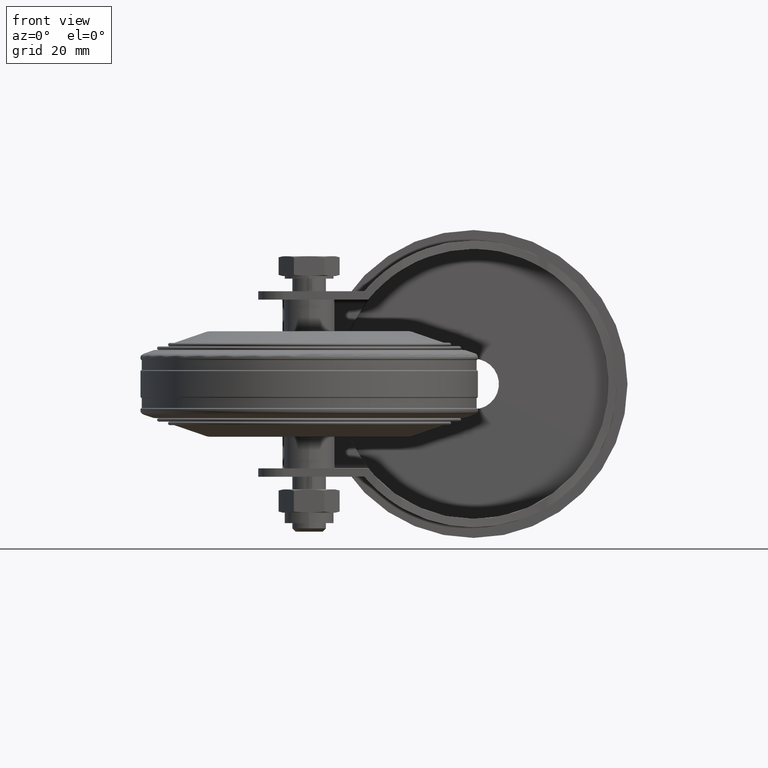
[diagram: clean part render]
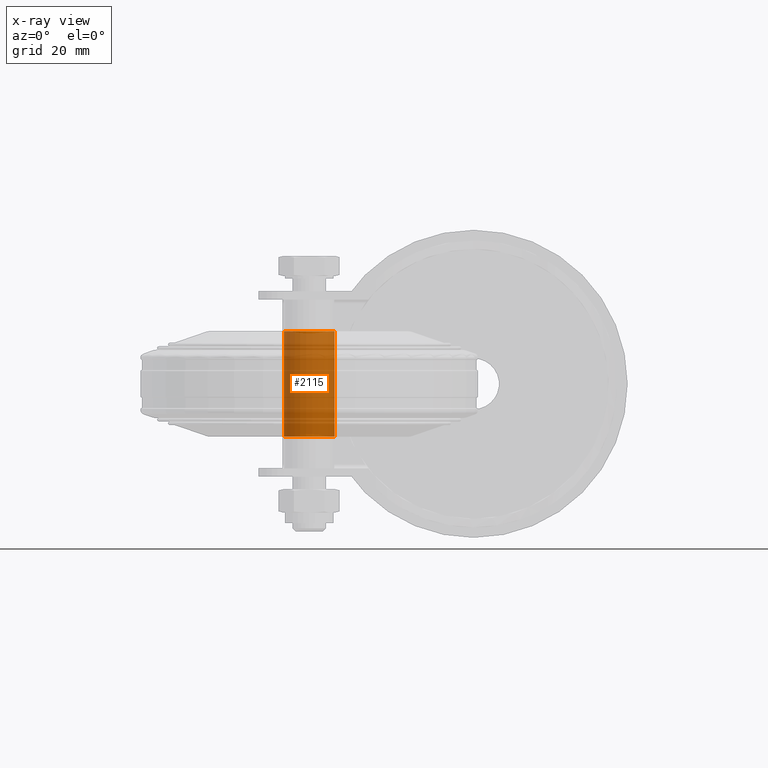
[diagram: x-ray — body ghosted, one internal face saturated and labeled with its STEP entity id]
A machine part, front view, then the same camera in x-ray: the body is ghosted and one INTERNAL B-rep face — a face not visible from any outside direction — is saturated and labeled: STEP entity #2115.
In plain terms, the highlighted cylindrical surface (bore or boss wall) has radius 6 mm, axis along (0, 0, -1).
Its self-contained STEP definition (entity closure, byte-faithful):
#267=CYLINDRICAL_SURFACE('',#2516,6.);
#405=FACE_OUTER_BOUND('',#572,.T.);
#572=EDGE_LOOP('',(#1924,#1925,#1926,#1927));
#707=CIRCLE('',#2503,6.);
#714=CIRCLE('',#2515,6.);
#792=LINE('',#4082,#870);
#870=VECTOR('',#3181,6.);
#1046=VERTEX_POINT('',#4060);
#1051=VERTEX_POINT('',#4079);
#1333=EDGE_CURVE('',#1046,#1046,#707,.T.);
#1342=EDGE_CURVE('',#1051,#1051,#714,.T.);
#1343=EDGE_CURVE('',#1051,#1046,#792,.T.);
#1924=ORIENTED_EDGE('',*,*,#1342,.F.);
#1925=ORIENTED_EDGE('',*,*,#1343,.T.);
#1926=ORIENTED_EDGE('',*,*,#1333,.T.);
#1927=ORIENTED_EDGE('',*,*,#1343,.F.);
#2115=ADVANCED_FACE('',(#405),#267,.F.);
#2503=AXIS2_PLACEMENT_3D('',#4061,#3151,#3152);
#2515=AXIS2_PLACEMENT_3D('',#4080,#3177,#3178);
#2516=AXIS2_PLACEMENT_3D('',#4081,#3179,#3180);
#3151=DIRECTION('center_axis',(6.12323399573677E-17,0.,-1.));
#3152=DIRECTION('ref_axis',(-1.,0.,-6.12323399573677E-17));
#3177=DIRECTION('center_axis',(6.12323399573677E-17,0.,-1.));
#3178=DIRECTION('ref_axis',(-1.,0.,-6.12323399573677E-17));
#3179=DIRECTION('center_axis',(6.12323399573677E-17,0.,-1.));
#3180=DIRECTION('ref_axis',(-1.,0.,-6.12323399573677E-17));
#3181=DIRECTION('',(6.12323399573677E-17,0.,-1.));
#4060=CARTESIAN_POINT('',(6.,-7.34788079488412E-16,-12.5));
#4061=CARTESIAN_POINT('Origin',(7.65404249467096E-16,0.,-12.5));
#4079=CARTESIAN_POINT('',(6.,-7.34788079488412E-16,12.5));
#4080=CARTESIAN_POINT('Origin',(-7.65404249467096E-16,0.,12.5));
#4081=CARTESIAN_POINT('Origin',(7.65404249467096E-16,0.,-12.5));
#4082=CARTESIAN_POINT('',(6.,-7.34788079488412E-16,-12.5));